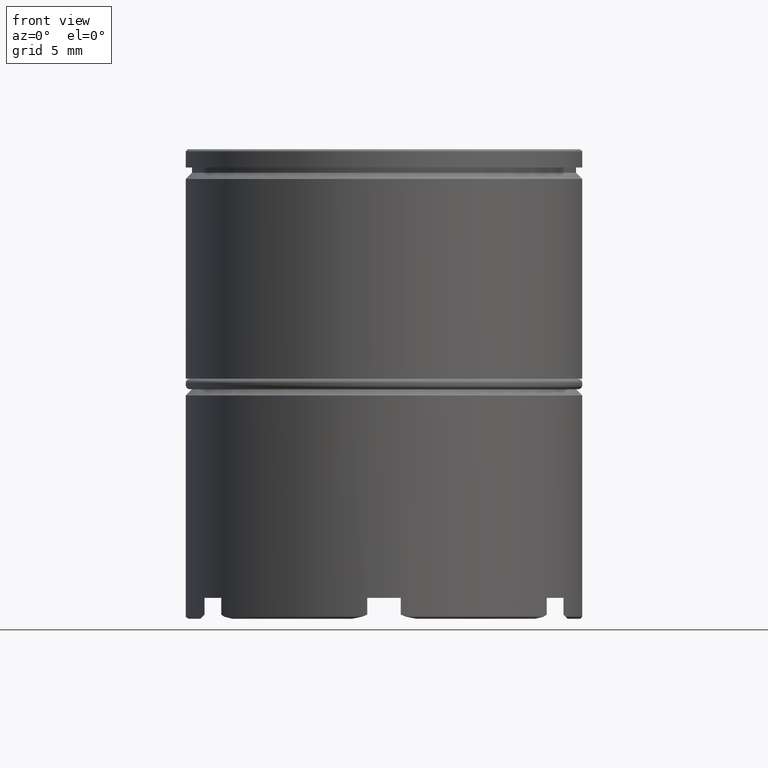
[diagram: clean part render]
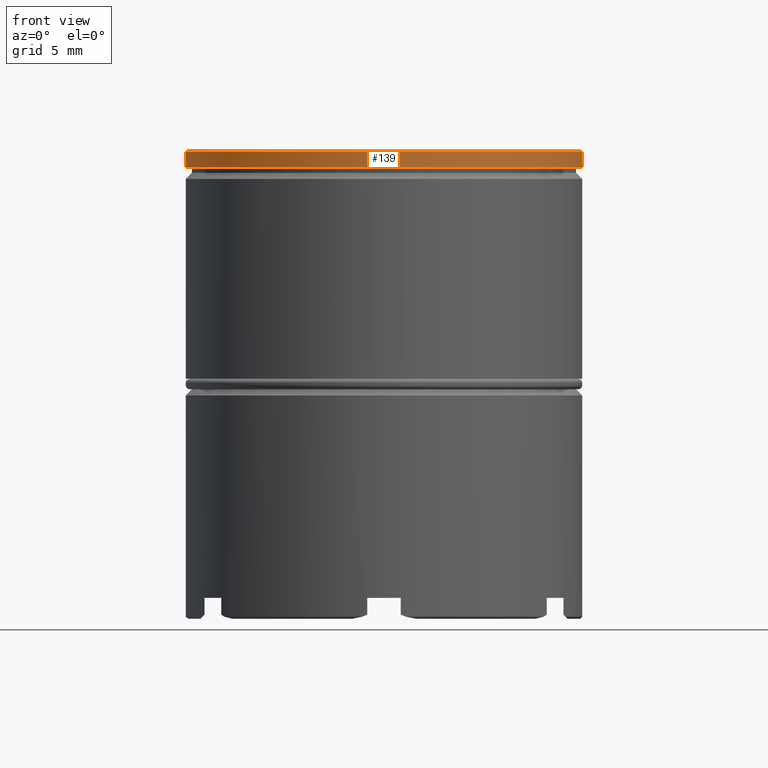
[diagram: same view with one face highlighted and labeled with its STEP entity id]
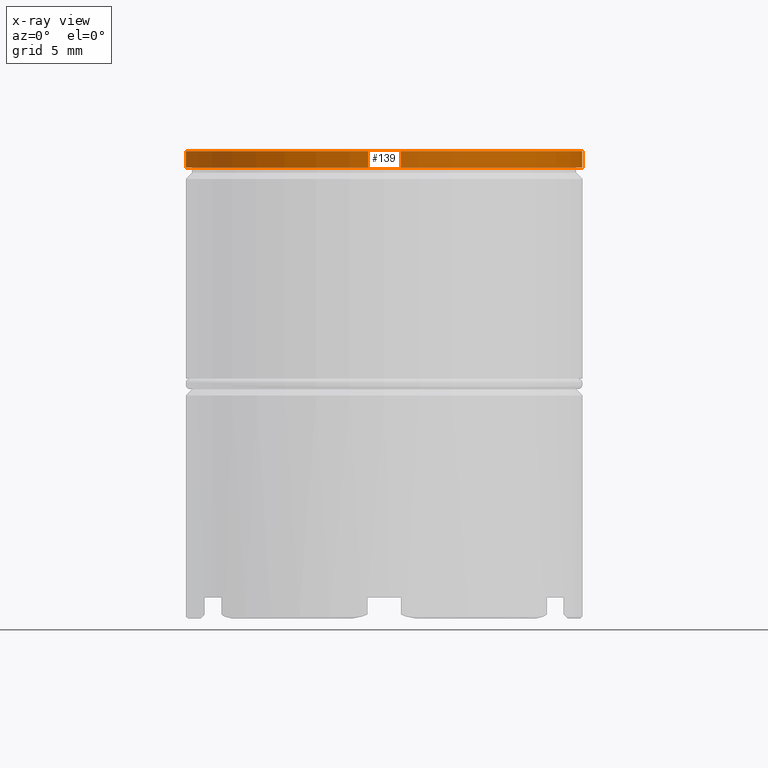
[diagram: x-ray of the same camera — body ghosted, the highlighted face saturated]
A machine part, front view. The second image highlights one B-rep face of the part: STEP entity #139.
The next image is the same camera in x-ray: the body ghosted, the highlighted face saturated — about 0% of this face is hidden behind the body in this view.
In plain terms, the highlighted cylindrical surface (partial cylindrical patch) has radius 9.5 mm, axis along (-0, -0, 1).
Its self-contained STEP definition (entity closure, byte-faithful):
#9 = AXIS2_PLACEMENT_3D ( 'NONE', #187, #1566, #1438 ) ;
#36 = AXIS2_PLACEMENT_3D ( 'NONE', #62, #312, #806 ) ;
#62 = CARTESIAN_POINT ( 'NONE',  ( 0.000000000000000000, 0.000000000000000000, 0.000000000000000000 ) ) ;
#94 = EDGE_CURVE ( 'NONE', #1190, #837, #1631, .T. ) ;
#139 = ADVANCED_FACE ( 'NONE', ( #419 ), #676, .T. ) ;
#154 = ORIENTED_EDGE ( 'NONE', *, *, #212, .F. ) ;
#187 = CARTESIAN_POINT ( 'NONE',  ( 0.000000000000000000, 0.000000000000000000, -0.8749999999999998890 ) ) ;
#206 = DIRECTION ( 'NONE',  ( -0.000000000000000000, -0.000000000000000000, 1.000000000000000000 ) ) ;
#212 = EDGE_CURVE ( 'NONE', #1328, #291, #1313, .T. ) ;
#220 = CARTESIAN_POINT ( 'NONE',  ( -9.500000000000000000, 1.163414459189985485E-15, 0.000000000000000000 ) ) ;
#272 = AXIS2_PLACEMENT_3D ( 'NONE', #1543, #412, #1120 ) ;
#273 = CARTESIAN_POINT ( 'NONE',  ( 9.500000000000000000, 0.000000000000000000, -0.09999999999999593936 ) ) ;
#291 = VERTEX_POINT ( 'NONE', #382 ) ;
#312 = DIRECTION ( 'NONE',  ( -0.000000000000000000, -0.000000000000000000, 1.000000000000000000 ) ) ;
#322 = CIRCLE ( 'NONE', #9, 9.500000000000000000 ) ;
#379 = ORIENTED_EDGE ( 'NONE', *, *, #548, .T. ) ;
#382 = CARTESIAN_POINT ( 'NONE',  ( -9.500000000000000000, 1.163414459189985485E-15, -0.09999999999999593936 ) ) ;
#412 = DIRECTION ( 'NONE',  ( 0.000000000000000000, 0.000000000000000000, -1.000000000000000000 ) ) ;
#419 = FACE_OUTER_BOUND ( 'NONE', #692, .T. ) ;
#523 = CIRCLE ( 'NONE', #272, 9.500000000000000000 ) ;
#548 = EDGE_CURVE ( 'NONE', #837, #291, #523, .T. ) ;
#592 = DIRECTION ( 'NONE',  ( -0.000000000000000000, -0.000000000000000000, 1.000000000000000000 ) ) ;
#676 = CYLINDRICAL_SURFACE ( 'NONE', #36, 9.500000000000000000 ) ;
#692 = EDGE_LOOP ( 'NONE', ( #154, #1156, #1414, #379 ) ) ;
#761 = CARTESIAN_POINT ( 'NONE',  ( 9.500000000000000000, 0.000000000000000000, -0.8749999999999998890 ) ) ;
#806 = DIRECTION ( 'NONE',  ( 1.000000000000000000, 0.000000000000000000, 0.000000000000000000 ) ) ;
#837 = VERTEX_POINT ( 'NONE', #273 ) ;
#928 = EDGE_CURVE ( 'NONE', #1328, #1190, #322, .T. ) ;
#961 = CARTESIAN_POINT ( 'NONE',  ( 9.500000000000000000, 0.000000000000000000, 0.000000000000000000 ) ) ;
#1113 = VECTOR ( 'NONE', #206, 1000.000000000000000 ) ;
#1120 = DIRECTION ( 'NONE',  ( 1.000000000000000000, 0.000000000000000000, 0.000000000000000000 ) ) ;
#1156 = ORIENTED_EDGE ( 'NONE', *, *, #928, .T. ) ;
#1190 = VERTEX_POINT ( 'NONE', #761 ) ;
#1309 = VECTOR ( 'NONE', #592, 1000.000000000000000 ) ;
#1313 = LINE ( 'NONE', #220, #1113 ) ;
#1328 = VERTEX_POINT ( 'NONE', #1498 ) ;
#1414 = ORIENTED_EDGE ( 'NONE', *, *, #94, .T. ) ;
#1438 = DIRECTION ( 'NONE',  ( 1.000000000000000000, 0.000000000000000000, 0.000000000000000000 ) ) ;
#1498 = CARTESIAN_POINT ( 'NONE',  ( -9.500000000000000000, 1.163414459189985485E-15, -0.8749999999999998890 ) ) ;
#1543 = CARTESIAN_POINT ( 'NONE',  ( 0.000000000000000000, 0.000000000000000000, -0.09999999999999593936 ) ) ;
#1566 = DIRECTION ( 'NONE',  ( -0.000000000000000000, -0.000000000000000000, 1.000000000000000000 ) ) ;
#1631 = LINE ( 'NONE', #961, #1309 ) ;